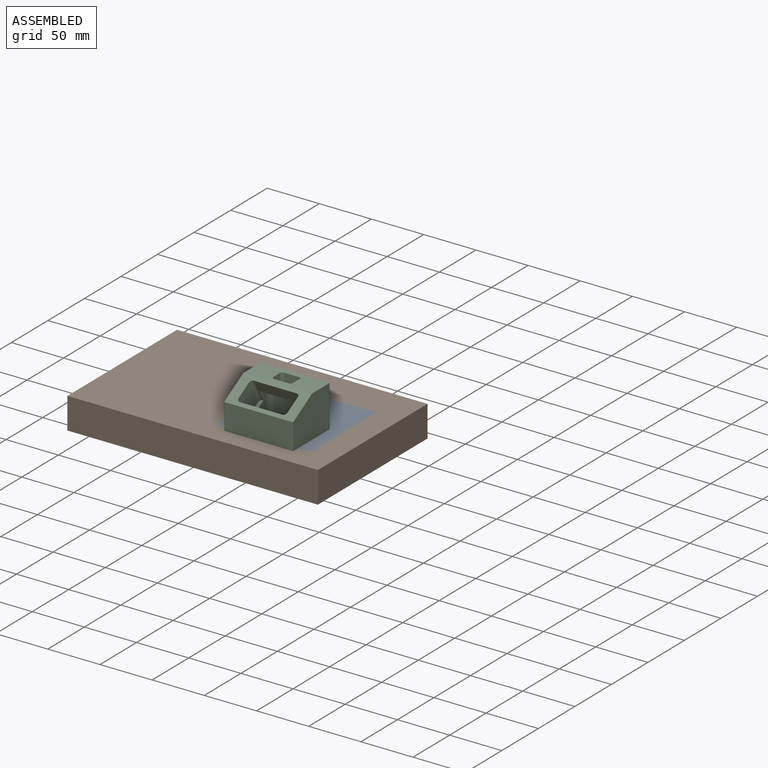
[diagram: assembled view]
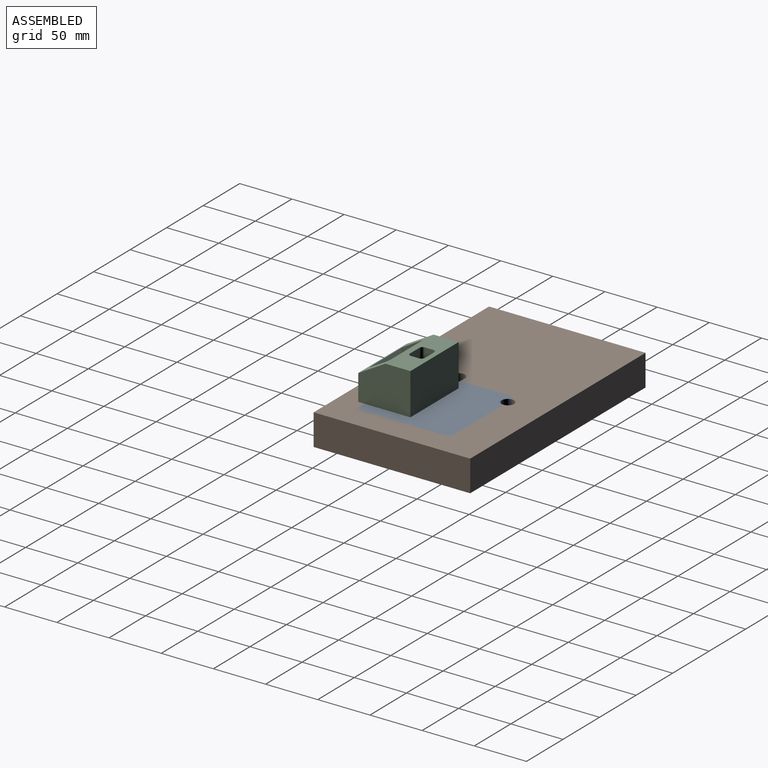
[diagram: assembled view, second angle]
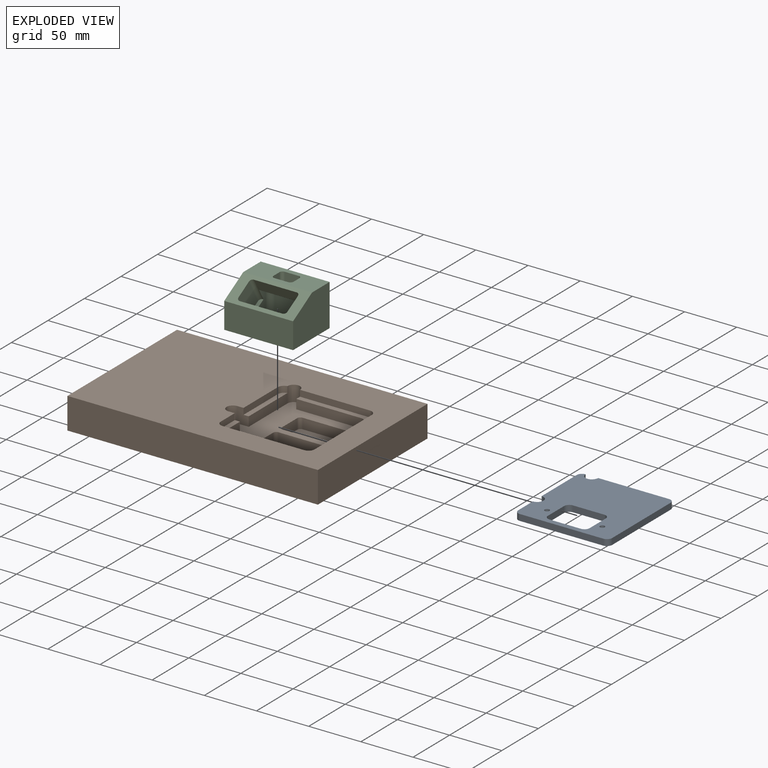
[diagram: exploded view]
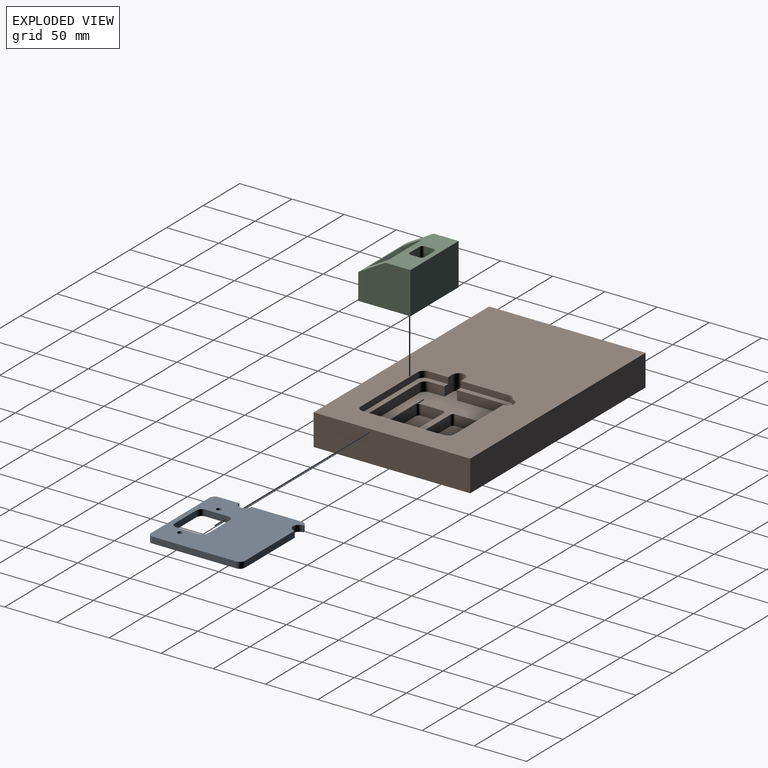
[diagram: exploded view, second angle]
ASSEMBLY  parts=3 mates=2
PART A: 25 faces, bbox 90x90x6 mm
  f0: cylinder r=6mm len=12mm, axis (0,0,1), area 113.1mm2, adj f1,f18,f19,f20
  f1: plane 68x6mm, normal (0,1,0), area 408mm2, adj f0,f2,f19,f20
  f2: cylinder r=5mm len=6mm, axis (0,0,1), area 47.1mm2, adj f1,f3,f19,f20
  f3: plane 80x6mm, normal (-1,0,0), area 480mm2, adj f2,f4,f19,f20
  f4: cylinder r=5mm len=6mm, axis (0,0,1), area 47.1mm2, adj f3,f5,f19,f20
  f5: plane 80x6mm, normal (0,-1,0), area 480mm2, adj f4,f6,f19,f20
  f6: cylinder r=5mm len=6mm, axis (0,0,1), area 47.1mm2, adj f5,f7,f19,f20
  f7: plane 20x6mm, normal (1,0,0), area 120mm2, adj f6,f8,f19,f20
  f8: cylinder r=6mm len=12mm, axis (0,0,1), area 113.1mm2, adj f7,f9,f19,f20
  f9: plane 48x6mm, normal (1,0,0), area 288mm2, adj f8,f18,f19,f20
  f10: cylinder r=5mm len=6mm, axis (0,0,1), area 47.1mm2, adj f11,f17,f19,f20
  f11: plane 22x6mm, normal (-1,0,0), area 132mm2, adj f10,f12,f19,f20
  f12: cylinder r=5mm len=6mm, axis (0,0,1), area 47.1mm2, adj f11,f13,f19,f20
  f13: plane 30x6mm, normal (0,1,0), area 180mm2, adj f12,f14,f19,f20
  f14: cylinder r=5mm len=6mm, axis (0,0,1), area 47.1mm2, adj f13,f15,f19,f20
  f15: plane 22x6mm, normal (1,0,0), area 132mm2, adj f14,f16,f19,f20
  f16: cylinder r=5mm len=6mm, axis (0,0,1), area 47.1mm2, adj f15,f17,f19,f20
  f17: plane 30x6mm, normal (0,-1,0), area 180mm2, adj f10,f16,f19,f20
  f18: cylinder r=5mm len=6mm, axis (0,0,1), area 47.1mm2, adj f0,f9,f19,f20
  f19: plane 90x90mm, normal (0,0,-1), area 6675.1mm2, adj f0,f1,f2,f3,f4,f5,f6,f7
  f20: plane 90x90mm, normal (0,0,1), area 6574mm2, adj f0,f1,f2,f3,f4,f5,f6,f7
  f21: cylinder r=2.25mm len=4.5mm, axis (0,0,1), area 51.6mm2, adj f19,f22
  f22: cone r=2.25mm half-angle=45deg, axis (0,0,1), area 71.5mm2, adj f20,f21
  f23: cylinder r=2.25mm len=4.5mm, axis (0,0,1), area 51.6mm2, adj f19,f24
  f24: cone r=2.25mm half-angle=45deg, axis (0,0,1), area 71.5mm2, adj f20,f23
PART B: 49 faces, bbox 240x150x30 mm
  f0: plane 240x150mm, normal (0,0,1), area 27745.8mm2, adj f8,f9,f10,f11,f13,f14,f15,f16
  f1: plane 14x9mm, normal (1,0,0), area 126mm2, adj f2,f16,f19,f45
  f2: cylinder r=6mm len=9mm, axis (0,0,1), area 84.8mm2, adj f1,f3,f19,f45
  f3: plane 68x9mm, normal (0,1,0), area 612mm2, adj f2,f4,f19,f45
  f4: cylinder r=6mm len=9mm, axis (0,0,1), area 84.8mm2, adj f3,f5,f19,f45
  f5: plane 68x9mm, normal (-1,0,0), area 612mm2, adj f4,f6,f19,f45
  f6: cylinder r=6mm len=9mm, axis (0,0,1), area 84.8mm2, adj f5,f7,f19,f45
  f7: plane 62x9mm, normal (0,-1,0), area 558mm2, adj f6,f17,f19,f45
  f8: plane 240x30mm, normal (0,-1,0), area 7200mm2, adj f0,f9,f11,f12
  f9: plane 150x30mm, normal (1,0,0), area 4500mm2, adj f0,f8,f10,f12
  f10: plane 240x30mm, normal (0,1,0), area 7200mm2, adj f0,f9,f11,f12
  f11: plane 150x30mm, normal (-1,0,0), area 4500mm2, adj f0,f8,f10,f12
  f12: plane 240x150mm, normal (0,0,-1), area 36000mm2, adj f8,f9,f10,f11
  f13: plane 53x15mm, normal (1,0,0), area 477.5mm2, adj f0,f14,f18,f19,f46,f48
  f14: plane 15x11mm, normal (0,-1,0), area 135mm2, adj f0,f13,f15,f19,f47,f48
  f15: cylinder r=6mm len=15mm, axis (0,0,1), area 282.7mm2, adj f0,f14,f16,f19
  f16: plane 15x11mm, normal (0,1,0), area 135mm2, adj f0,f1,f15,f19,f38,f45
  f17: plane 9x5mm, normal (-1,0,0), area 45mm2, adj f7,f18,f19,f45
  f18: cylinder r=6mm len=15mm, axis (0,0,1), area 282.7mm2, adj f0,f13,f17,f19,f44
  f19: plane 97x91mm, normal (0,0,1), area 3835.4mm2, adj f1,f2,f3,f4,f5,f6,f7,f13
  f20: plane 53x27mm, normal (0,0,1), area 1423.3mm2, adj f21,f22,f23,f24,f25,f26,f27,f28
  f21: cylinder r=3mm len=10mm, axis (0,0,1), area 47.1mm2, adj f19,f20,f22,f28
  f22: plane 47x10mm, normal (0,-1,0), area 470mm2, adj f19,f20,f21,f23
  f23: cylinder r=3mm len=10mm, axis (0,0,1), area 47.1mm2, adj f19,f20,f22,f24
  f24: plane 21x10mm, normal (-1,0,0), area 210mm2, adj f19,f20,f23,f25
  f25: cylinder r=3mm len=10mm, axis (0,0,1), area 47.1mm2, adj f19,f20,f24,f26
  f26: plane 47x10mm, normal (0,1,0), area 470mm2, adj f19,f20,f25,f27
  f27: cylinder r=3mm len=10mm, axis (0,0,1), area 47.1mm2, adj f19,f20,f26,f28
  f28: plane 21x10mm, normal (1,0,0), area 210mm2, adj f19,f20,f21,f27
  f29: plane 53x27mm, normal (0,0,1), area 1423.3mm2, adj f30,f31,f32,f33,f34,f35,f36,f37
  f30: cylinder r=3mm len=10mm, axis (0,0,1), area 47.1mm2, adj f19,f29,f31,f37
  f31: plane 47x10mm, normal (0,-1,0), area 470mm2, adj f19,f29,f30,f32
  f32: cylinder r=3mm len=10mm, axis (0,0,1), area 47.1mm2, adj f19,f29,f31,f33
  f33: plane 21x10mm, normal (-1,0,0), area 210mm2, adj f19,f29,f32,f34
  f34: cylinder r=3mm len=10mm, axis (0,0,1), area 47.1mm2, adj f19,f29,f33,f35
  f35: plane 47x10mm, normal (0,1,0), area 470mm2, adj f19,f29,f34,f36
  f36: cylinder r=3mm len=10mm, axis (0,0,1), area 47.1mm2, adj f19,f29,f35,f37
  f37: plane 21x10mm, normal (1,0,0), area 210mm2, adj f19,f29,f30,f36
  f38: plane 19x6mm, normal (1,0,0), area 114mm2, adj f0,f16,f39,f45
  f39: cylinder r=6mm len=6mm, axis (0,0,1), area 56.5mm2, adj f0,f38,f40,f45
  f40: plane 78x6mm, normal (0,1,0), area 468mm2, adj f0,f39,f41,f45
  f41: cylinder r=6mm len=6mm, axis (0,0,1), area 56.5mm2, adj f0,f40,f42,f45
  f42: plane 78x6mm, normal (-1,0,0), area 468mm2, adj f0,f41,f43,f45
  f43: cylinder r=6mm len=6mm, axis (0,0,1), area 56.5mm2, adj f0,f42,f44,f45
  f44: plane 67x6mm, normal (0,-1,0), area 402mm2, adj f0,f18,f43,f45
  f45: plane 90x90mm, normal (0,0,1), area 1315mm2, adj f1,f2,f3,f4,f5,f6,f7,f16
  f46: cylinder r=6mm len=6mm, axis (0,0,1), area 50.5mm2, adj f0,f13,f47,f48
  f47: plane 47x6mm, normal (1,0,0), area 282mm2, adj f0,f14,f46,f48
  f48: plane 52.92x5mm, normal (0,0,1), area 257.3mm2, adj f13,f14,f46,f47
PART C: 39 faces, bbox 66x50x40 mm
  f0: plane 18.61x1.7mm, normal (0,0,1), area 29mm2, adj f12,f13,f14,f33
  f1: plane 66x50mm, normal (0,0,-1), area 1816.3mm2, adj f7,f8,f9,f10,f27,f28,f29,f30
  f2: plane 40.85x21.65mm, normal (0,-0.87,-0.5), area 532.3mm2, adj f4,f5,f20,f21,f25,f26,f30,f31
  f3: plane 40.85x21.65mm, normal (0,0.87,0.5), area 296mm2, adj f4,f5,f23,f24,f25,f27,f28,f29
  f4: plane 19.31x11.15mm, normal (0,-0.5,0.87), area 72.5mm2, adj f2,f3,f19,f20,f24,f30
  f5: plane 66x26mm, normal (0,-0.5,0.87), area 944.4mm2, adj f2,f3,f6,f7,f9,f10,f19,f20
  f6: plane 66x24mm, normal (0,0,1), area 1319.1mm2, adj f5,f8,f9,f10,f11,f12,f13,f14
  f7: plane 66x24.99mm, normal (0,-1,0), area 1649.3mm2, adj f1,f5,f9,f10
  f8: plane 66x40mm, normal (0,1,0), area 2640mm2, adj f1,f6,f9,f10
  f9: plane 50x40mm, normal (1,0,0), area 1804.9mm2, adj f1,f5,f6,f7,f8
  f10: plane 50x40mm, normal (-1,0,0), area 1804.9mm2, adj f1,f5,f6,f7,f8
  f11: plane 13x8.2mm, normal (-1,0,0), area 106.6mm2, adj f6,f12,f18,f26
  f12: cylinder r=3mm len=13mm, axis (0,0,1), area 61.3mm2, adj f0,f6,f11,f13,f26
  f13: plane 13.2x13mm, normal (0,-1,0), area 171.6mm2, adj f0,f6,f12,f14
  f14: cylinder r=3mm len=13mm, axis (0,0,1), area 61.3mm2, adj f0,f6,f13,f15,f26
  f15: plane 13x8.2mm, normal (1,0,0), area 106.6mm2, adj f6,f14,f16,f26
  f16: cylinder r=3mm len=13mm, axis (0,0,1), area 61.3mm2, adj f6,f15,f17,f26
  f17: plane 13.2x13mm, normal (0,1,0), area 171.6mm2, adj f6,f16,f18,f26
  f18: cylinder r=3mm len=13mm, axis (0,0,1), area 61.3mm2, adj f6,f11,f17,f26
  f19: plane 29.8x26.62mm, normal (-1,0,0), area 407.5mm2, adj f4,f5,f20,f24
  f20: cylinder r=3mm len=23.15mm, axis (0,-0.5,0.87), area 117.8mm2, adj f2,f4,f5,f19
  f21: cylinder r=3mm len=23.15mm, axis (0,-0.5,0.87), area 117.8mm2, adj f2,f5,f22,f25
  f22: plane 29.8x26.62mm, normal (1,0,0), area 407.5mm2, adj f5,f21,f23,f25
  f23: cylinder r=3mm len=23.15mm, axis (0,-0.5,0.87), area 117.8mm2, adj f3,f5,f22,f25
  f24: cylinder r=3mm len=23.15mm, axis (0,-0.5,0.87), area 117.8mm2, adj f3,f4,f5,f19
  f25: plane 19.31x11.15mm, normal (0,-0.5,0.87), area 72.5mm2, adj f2,f3,f21,f22,f23,f31
  f26: plane 40x14.47mm, normal (0,0,-1), area 332mm2, adj f2,f11,f12,f14,f15,f16,f17,f18
  f27: cylinder r=5mm len=21.43mm, axis (0,0,-1), area 143.6mm2, adj f1,f3,f28,f30
  f28: plane 30x21.43mm, normal (0,1,0), area 642.9mm2, adj f1,f3,f27,f29
  f29: cylinder r=5mm len=21.43mm, axis (0,0,-1), area 143.6mm2, adj f1,f3,f28,f31
  f30: plane 27x27mm, normal (-1,0,0), area 371.3mm2, adj f1,f2,f3,f4,f26,f27,f34
  f31: plane 27x27mm, normal (1,0,0), area 371.3mm2, adj f1,f2,f3,f25,f26,f29,f32
  f32: cylinder r=5mm len=27mm, axis (0,0,-1), area 212.1mm2, adj f1,f26,f31,f33
  f33: plane 30x27mm, normal (0,-1,0), area 810mm2, adj f0,f1,f26,f32,f34
  f34: cylinder r=5mm len=27mm, axis (0,0,-1), area 212.1mm2, adj f1,f26,f30,f33
  f35: cone r=0mm half-angle=59deg, axis (0,0,-1), area 14.7mm2, adj f36
  f36: cylinder r=2mm len=14mm, axis (0,0,-1), area 175.9mm2, adj f1,f35
  f37: cone r=0mm half-angle=59deg, axis (0,0,-1), area 14.7mm2, adj f38
  f38: cylinder r=2mm len=14mm, axis (0,0,-1), area 175.9mm2, adj f1,f37
PLACE A rot(axis=(0,1,0),180deg) t=(-138.81,-42.34,32.95)mm
PLACE B t=(-24.81,-66.34,38.95)mm
PLACE C t=(-126.81,1.16,38.95)mm
MATE fastened A.f9 <-> B.f47  axis (-1,0,0) through (-138.81,-5.34,35.95)mm
MATE fastened C.f37 <-> A.f21  axis (0,0,-1) through (-120.31,-24.34,38.95)mm
